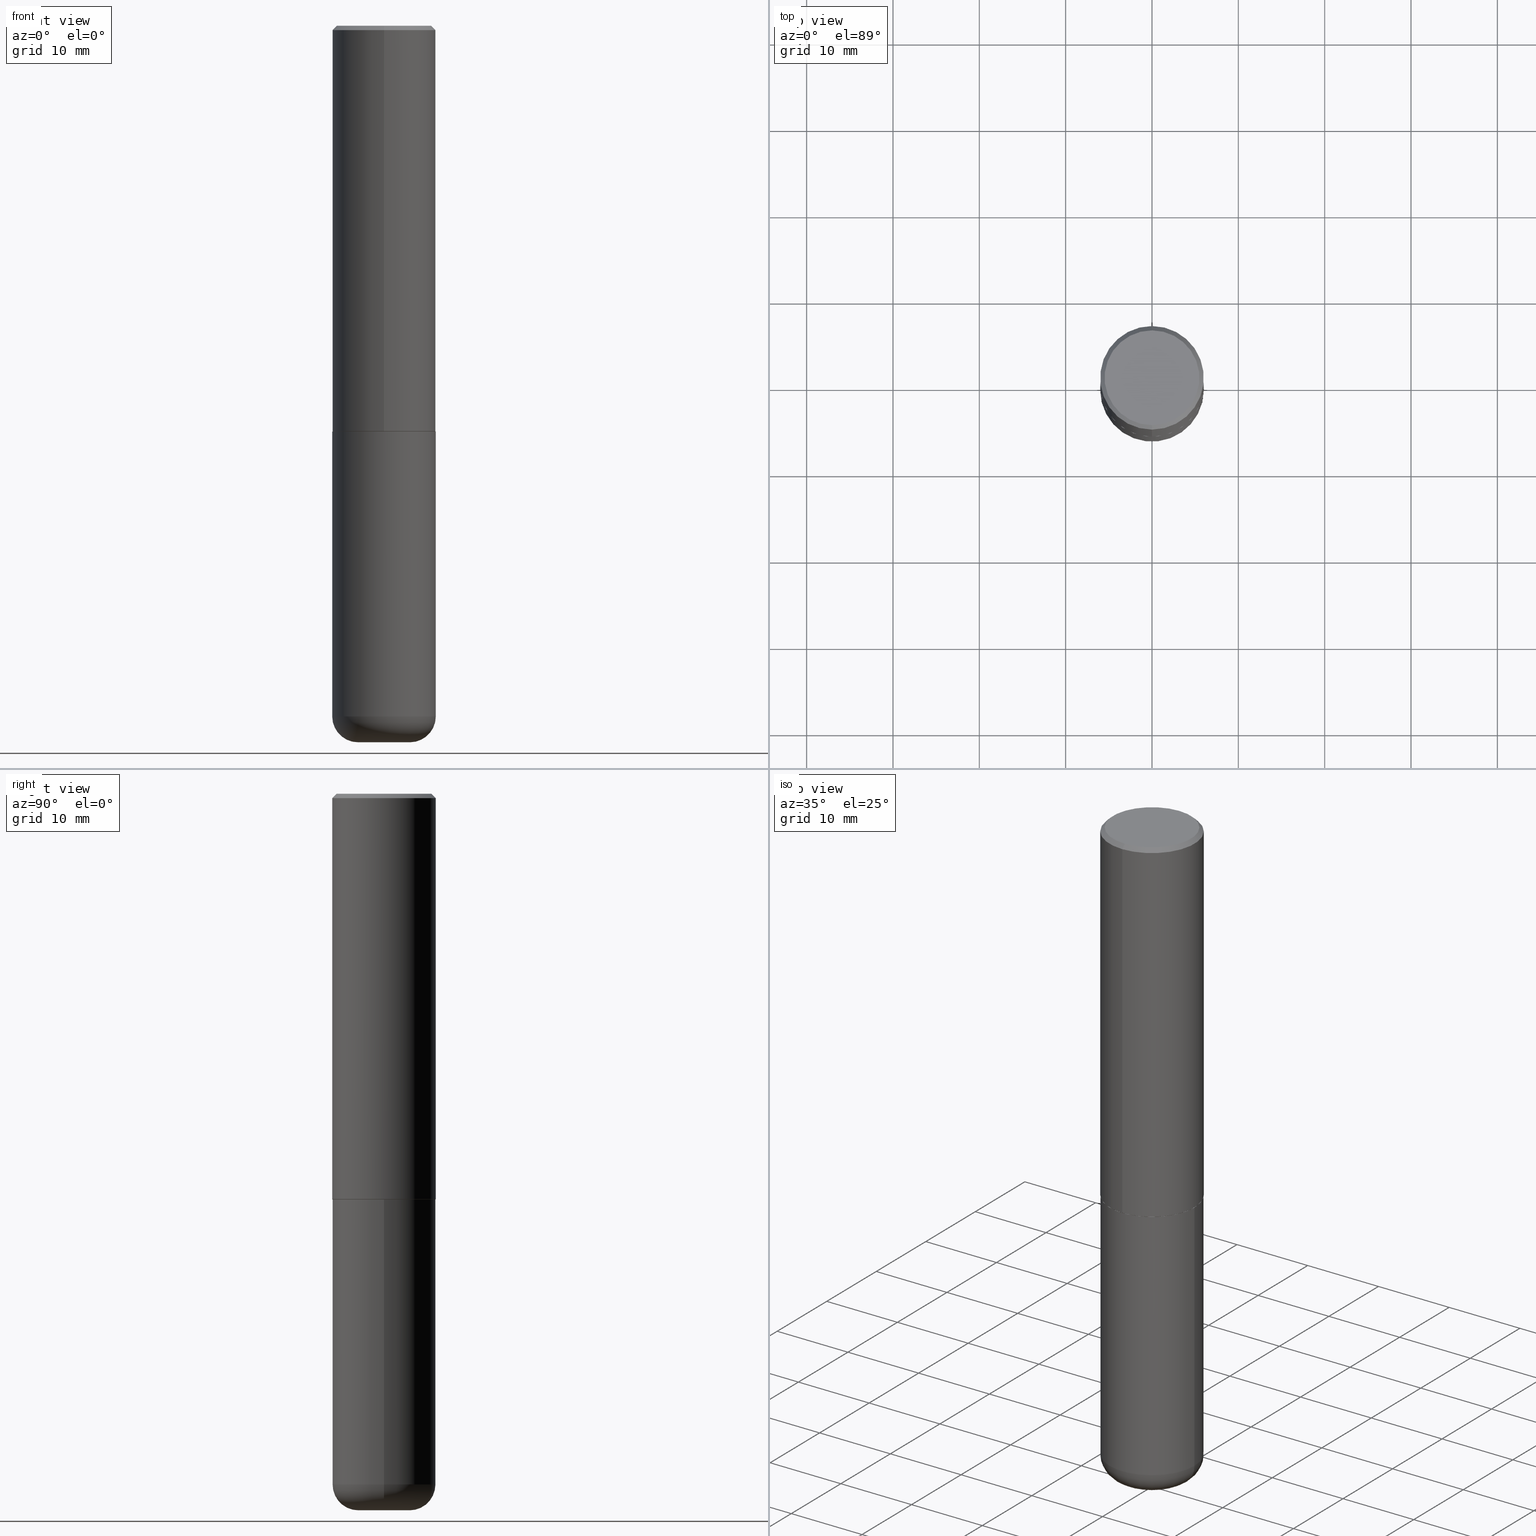
[diagram: canonical four-view strip — front | top / right | iso, engineering-drawing reading convention]
A machine part, canonical four-view strip (front | top / right | iso — engineering-drawing reading convention). The complete STEP part file that produces these views, byte-faithful:
ISO-10303-21;
HEADER;
FILE_DESCRIPTION (( 'STEP AP203' ),
    '1' );
FILE_NAME ('47556.STEP',
    '2024-03-06T10:59:35',
    ( '' ),
    ( '' ),
    'SwSTEP 2.0',
    'SolidWorks 2023',
    '' );
FILE_SCHEMA (( 'CONFIG_CONTROL_DESIGN' ));
ENDSEC;

DATA;
#1 = DIRECTION ( 'NONE',  ( 7.105427357601001859E-15, 1.000000000000000000, -3.491481338843145583E-15 ) ) ;
#2 = ORIENTED_EDGE ( 'NONE', *, *, #53, .T. ) ;
#3 = DIRECTION ( 'NONE',  ( -2.445468806185136597E-29, 3.491481338843145583E-15, 1.000000000000000000 ) ) ;
#4 = VERTEX_POINT ( 'NONE', #107 ) ;
#5 = DIRECTION ( 'NONE',  ( 1.000000000000000000, -6.982962677686264344E-15, 0.000000000000000000 ) ) ;
#6 = APPROVAL_PERSON_ORGANIZATION ( #184, #237, #381 ) ;
#7 = DIRECTION ( 'NONE',  ( -2.445371925614294233E-29, 3.491620077334691546E-15, 1.000000000000000000 ) ) ;
#8 = AXIS2_PLACEMENT_3D ( 'NONE', #108, #364, #164 ) ;
#9 =( NAMED_UNIT ( * ) PLANE_ANGLE_UNIT ( ) SI_UNIT ( $, .RADIAN. ) );
#10 = EDGE_CURVE ( 'NONE', #61, #193, #118, .T. ) ;
#11 = FACE_OUTER_BOUND ( 'NONE', #294, .T. ) ;
#12 = DIRECTION ( 'NONE',  ( -2.445371925614294233E-29, 3.491620077334691546E-15, 1.000000000000000000 ) ) ;
#13 = LOCAL_TIME ( 5, 59, 35.00000000000000000, #122 ) ;
#14 = AXIS2_PLACEMENT_3D ( 'NONE', #336, #371, #275 ) ;
#15 = DIRECTION ( 'NONE',  ( -2.445371925614294233E-29, 3.491620077334691546E-15, 1.000000000000000000 ) ) ;
#16 = CARTESIAN_POINT ( 'NONE',  ( 4.890743851228601113E-31, -6.983240154669400497E-17, -0.02000000000000005246 ) ) ;
#17 = CIRCLE ( 'NONE', #313, 0.1180999999999997607 ) ;
#18 = CARTESIAN_POINT ( 'NONE',  ( 1.671196514507800548E-15, 0.2351999999999935531, -1.850400000000001377 ) ) ;
#19 = CIRCLE ( 'NONE', #374, 0.2361999999999999933 ) ;
#20 = EDGE_LOOP ( 'NONE', ( #152, #415, #290, #102 ) ) ;
#21 = EDGE_CURVE ( 'NONE', #197, #265, #217, .T. ) ;
#22 = CIRCLE ( 'NONE', #298, 0.1181000000000000105 ) ;
#23 = PERSON_AND_ORGANIZATION ( #392, #185 ) ;
#24 = APPROVAL_STATUS ( 'not_yet_approved' ) ;
#25 = EDGE_LOOP ( 'NONE', ( #353, #67, #416, #129 ) ) ;
#26 = ORIENTED_EDGE ( 'NONE', *, *, #307, .F. ) ;
#27 = COORDINATED_UNIVERSAL_TIME_OFFSET ( 5, 0, .BEHIND. ) ;
#28 = DIRECTION ( 'NONE',  ( 5.024295867787719235E-15, 0.7071067811865017205, 0.7071067811865933139 ) ) ;
#29 = VERTEX_POINT ( 'NONE', #268 ) ;
#30 = AXIS2_PLACEMENT_3D ( 'NONE', #70, #100, #198 ) ;
#31 = DATE_AND_TIME ( #65, #340 ) ;
#32 = ADVANCED_FACE ( 'NONE', ( #271 ), #373, .T. ) ;
#33 = DIRECTION ( 'NONE',  ( -2.445371925614294233E-29, 3.491620077334691546E-15, 1.000000000000000000 ) ) ;
#34 = ORIENTED_EDGE ( 'NONE', *, *, #71, .T. ) ;
#35 = DIRECTION ( 'NONE',  ( -6.982962677686265922E-15, -1.000000000000000000, 3.487819265831411744E-15 ) ) ;
#36 = DIRECTION ( 'NONE',  ( -2.445468806185136597E-29, 3.491481338843145583E-15, 1.000000000000000000 ) ) ;
#37 = VERTEX_POINT ( 'NONE', #278 ) ;
#38 = ADVANCED_FACE ( 'NONE', ( #337 ), #110, .F. ) ;
#39 = AXIS2_PLACEMENT_3D ( 'NONE', #370, #402, #330 ) ;
#40 = AXIS2_PLACEMENT_3D ( 'NONE', #221, #33, #346 ) ;
#41 = CARTESIAN_POINT ( 'NONE',  ( 0.000000000000000000, 0.000000000000000000, 0.000000000000000000 ) ) ;
#42 = CC_DESIGN_DATE_AND_TIME_ASSIGNMENT ( #62, #380, ( #358 ) ) ;
#43 = DIRECTION ( 'NONE',  ( -6.982962677686265133E-15, -1.000000000000000000, 3.484499991918703113E-15 ) ) ;
#44 = CARTESIAN_POINT ( 'NONE',  ( 1.674749228186601644E-15, 0.2351999999999935531, -1.850400000000001377 ) ) ;
#45 = CIRCLE ( 'NONE', #267, 0.1181000000000000105 ) ;
#46 = AXIS2_PLACEMENT_3D ( 'NONE', #50, #236, #366 ) ;
#47 = CARTESIAN_POINT ( 'NONE',  ( 7.702248551960706711E-29, -1.099676962482037231E-14, -3.149600000000000399 ) ) ;
#48 = DIRECTION ( 'NONE',  ( -2.445468806185136877E-29, 3.491481338843145188E-15, 1.000000000000000000 ) ) ;
#49 = CARTESIAN_POINT ( 'NONE',  ( -0.2361999999999998823, -9.318467682955017493E-15, -3.149600000000000399 ) ) ;
#50 = CARTESIAN_POINT ( 'NONE',  ( 4.524916211156691287E-29, -6.460893791100115503E-15, -1.850400000000000489 ) ) ;
#51 = CYLINDRICAL_SURFACE ( 'NONE', #39, 0.2362000000000001043 ) ;
#52 = CONICAL_SURFACE ( 'NONE', #239, 0.2351999999999999924, 0.7853981633973801113 ) ;
#53 = EDGE_CURVE ( 'NONE', #4, #57, #333, .T. ) ;
#54 = COORDINATED_UNIVERSAL_TIME_OFFSET ( 5, 0, .BEHIND. ) ;
#55 = ADVANCED_FACE ( 'NONE', ( #276 ), #350, .T. ) ;
#56 = LINE ( 'NONE', #18, #331 ) ;
#57 = VERTEX_POINT ( 'NONE', #49 ) ;
#58 = DIRECTION ( 'NONE',  ( -4.851104656540961908E-15, -0.7071067811865496822, -0.7071067811865453523 ) ) ;
#59 = CC_DESIGN_APPROVAL ( #237, ( #358 ) ) ;
#60 = EDGE_LOOP ( 'NONE', ( #230, #293, #387, #64 ) ) ;
#61 = VERTEX_POINT ( 'NONE', #84 ) ;
#62 = DATE_AND_TIME ( #194, #135 ) ;
#63 = CARTESIAN_POINT ( 'NONE',  ( 4.890743851228601113E-31, -6.983240154669400497E-17, -0.02000000000000005246 ) ) ;
#64 = ORIENTED_EDGE ( 'NONE', *, *, #202, .F. ) ;
#65 = CALENDAR_DATE ( 2024, 6, 3 ) ;
#66 = MECHANICAL_CONTEXT ( 'NONE', #204, 'mechanical' ) ;
#67 = ORIENTED_EDGE ( 'NONE', *, *, #167, .F. ) ;
#68 = VECTOR ( 'NONE', #361, 39.37007874015748143 ) ;
#69 = PRODUCT ( '47556', '47556', '', ( #66 ) ) ;
#70 = CARTESIAN_POINT ( 'NONE',  ( 4.890743851228601113E-31, -6.983240154669400497E-17, -0.02000000000000005246 ) ) ;
#71 = EDGE_CURVE ( 'NONE', #345, #37, #22, .T. ) ;
#72 = SHAPE_DEFINITION_REPRESENTATION ( #226, #136 ) ;
#73 = CYLINDRICAL_SURFACE ( 'NONE', #303, 0.2362000000000001043 ) ;
#74 = ORIENTED_EDGE ( 'NONE', *, *, #178, .F. ) ;
#75 = CC_DESIGN_PERSON_AND_ORGANIZATION_ASSIGNMENT ( #182, #289, ( #358 ) ) ;
#76 = CC_DESIGN_APPROVAL ( #207, ( #324 ) ) ;
#77 = DIRECTION ( 'NONE',  ( -2.445371925614294233E-29, 3.491620077334691546E-15, 1.000000000000000000 ) ) ;
#78 = DIRECTION ( 'NONE',  ( 2.438088387897960049E-29, -3.491481338843145188E-15, -1.000000000000000000 ) ) ;
#79 = CLOSED_SHELL ( 'NONE', ( #173, #231, #87, #263, #335, #32 ) ) ;
#80 = AXIS2_PLACEMENT_3D ( 'NONE', #338, #114, #81 ) ;
#81 = DIRECTION ( 'NONE',  ( -6.982962677686265133E-15, -1.000000000000000000, 3.469747663417773847E-15 ) ) ;
#82 = DIRECTION ( 'NONE',  ( -2.445468806185136597E-29, 3.491481338843145583E-15, 1.000000000000000000 ) ) ;
#83 = DIRECTION ( 'NONE',  ( 1.000000000000000000, -6.982962677686269077E-15, 0.000000000000000000 ) ) ;
#84 = CARTESIAN_POINT ( 'NONE',  ( -1.620449627073635079E-15, -0.2362000000000000766, -0.01999999999999922673 ) ) ;
#85 = PRODUCT_RELATED_PRODUCT_CATEGORY ( 'detail', '', ( #69 ) ) ;
#86 = LINE ( 'NONE', #206, #218 ) ;
#87 = ADVANCED_FACE ( 'NONE', ( #369 ), #339, .F. ) ;
#88 = PERSON_AND_ORGANIZATION ( #392, #185 ) ;
#89 = FACE_OUTER_BOUND ( 'NONE', #261, .T. ) ;
#90 = MANIFOLD_SOLID_BREP ( 'Body-Move/Copy2[1]', #79 ) ;
#91 = DATE_TIME_ROLE ( 'classification_date' ) ;
#92 = LINE ( 'NONE', #216, #201 ) ;
#93 = ORIENTED_EDGE ( 'NONE', *, *, #10, .T. ) ;
#94 = CIRCLE ( 'NONE', #273, 0.1180999999999997607 ) ;
#95 = EDGE_LOOP ( 'NONE', ( #287, #394, #288, #121 ) ) ;
#96 = EDGE_LOOP ( 'NONE', ( #355, #220, #316, #390 ) ) ;
#97 = CARTESIAN_POINT ( 'NONE',  ( 4.522470839231075964E-29, -6.457402171022779437E-15, -1.849400000000000155 ) ) ;
#98 = ORIENTED_EDGE ( 'NONE', *, *, #53, .F. ) ;
#99 = APPROVAL ( #212, 'UNSPECIFIED' ) ;
#100 = DIRECTION ( 'NONE',  ( -2.445371925614294233E-29, 3.491620077334691546E-15, 1.000000000000000000 ) ) ;
#101 = AXIS2_PLACEMENT_3D ( 'NONE', #63, #120, #284 ) ;
#102 = ORIENTED_EDGE ( 'NONE', *, *, #408, .F. ) ;
#103 = TOROIDAL_SURFACE ( 'NONE', #348, 0.1180999999999999966, 0.1180999999999997607 ) ;
#104 = AXIS2_PLACEMENT_3D ( 'NONE', #168, #106, #301 ) ;
#105 = EDGE_CURVE ( 'NONE', #37, #57, #94, .T. ) ;
#106 = DIRECTION ( 'NONE',  ( -2.445371925614294233E-29, 3.491620077334691546E-15, 1.000000000000000000 ) ) ;
#107 = CARTESIAN_POINT ( 'NONE',  ( 0.2361999999999998823, -1.264614540928986883E-14, -3.149600000000000399 ) ) ;
#108 = CARTESIAN_POINT ( 'NONE',  ( 0.000000000000000000, 0.000000000000000000, 0.000000000000000000 ) ) ;
#109 = EDGE_CURVE ( 'NONE', #29, #223, #183, .T. ) ;
#110 = PLANE ( 'NONE',  #46 ) ;
#111 =( LENGTH_UNIT ( ) NAMED_UNIT ( * ) SI_UNIT ( $, .METRE. ) );
#112 = APPROVAL_PERSON_ORGANIZATION ( #23, #99, #342 ) ;
#113 = ADVANCED_FACE ( 'NONE', ( #311 ), #132, .T. ) ;
#114 = DIRECTION ( 'NONE',  ( -2.445371925614294233E-29, 3.491620077334691546E-15, 1.000000000000000000 ) ) ;
#115 = DIRECTION ( 'NONE',  ( 6.982962677686265922E-15, 1.000000000000000000, -3.487819265831411744E-15 ) ) ;
#116 = CARTESIAN_POINT ( 'NONE',  ( 1.678301941865357183E-15, 0.2362000000000001043, -8.247206622664545710E-16 ) ) ;
#117 = LINE ( 'NONE', #376, #139 ) ;
#118 = CIRCLE ( 'NONE', #225, 0.2361999999999999933 ) ;
#119 = DATE_AND_TIME ( #191, #13 ) ;
#120 = DIRECTION ( 'NONE',  ( 2.445371925614294233E-29, -3.491620077334691546E-15, -1.000000000000000000 ) ) ;
#121 = ORIENTED_EDGE ( 'NONE', *, *, #295, .F. ) ;
#122 = COORDINATED_UNIVERSAL_TIME_OFFSET ( 5, 0, .BEHIND. ) ;
#123 = CARTESIAN_POINT ( 'NONE',  ( 1.509716530915768154E-15, 0.2161999999999996425, -5.905355322199570835E-16 ) ) ;
#124 = VERTEX_POINT ( 'NONE', #192 ) ;
#125 = EDGE_CURVE ( 'NONE', #197, #418, #56, .T. ) ;
#126 = EDGE_LOOP ( 'NONE', ( #34, #187, #98, #409 ) ) ;
#127 = EDGE_LOOP ( 'NONE', ( #329, #181, #163, #26 ) ) ;
#128 = DIRECTION ( 'NONE',  ( 1.000000000000000000, -6.982962677686270655E-15, 0.000000000000000000 ) ) ;
#129 = ORIENTED_EDGE ( 'NONE', *, *, #243, .T. ) ;
#130 = VERTEX_POINT ( 'NONE', #344 ) ;
#131 = ORIENTED_EDGE ( 'NONE', *, *, #21, .F. ) ;
#132 = CONICAL_SURFACE ( 'NONE', #101, 0.2361999999999999933, 0.7853981633974479459 ) ;
#133 = CARTESIAN_POINT ( 'NONE',  ( -1.642392821791764560E-15, -0.2352000000000064595, -1.850399999999999823 ) ) ;
#134 = CYLINDRICAL_SURFACE ( 'NONE', #8, 0.2361999999999999933 ) ;
#135 = LOCAL_TIME ( 5, 59, 35.00000000000000000, #27 ) ;
#136 = ADVANCED_BREP_SHAPE_REPRESENTATION ( '47556', ( #90, #360, #321 ), #362 ) ;
#137 = CARTESIAN_POINT ( 'NONE',  ( -1.642392821791764560E-15, -0.2352000000000064595, -1.850399999999999823 ) ) ;
#138 = CC_DESIGN_PERSON_AND_ORGANIZATION_ASSIGNMENT ( #377, #158, ( #296 ) ) ;
#139 = VECTOR ( 'NONE', #213, 39.37007874015748143 ) ;
#140 = CALENDAR_DATE ( 2024, 6, 3 ) ;
#141 = AXIS2_PLACEMENT_3D ( 'NONE', #97, #156, #180 ) ;
#142 = AXIS2_PLACEMENT_3D ( 'NONE', #400, #174, #302 ) ;
#143 = AXIS2_PLACEMENT_3D ( 'NONE', #16, #406, #115 ) ;
#144 = CC_DESIGN_DATE_AND_TIME_ASSIGNMENT ( #119, #91, ( #324 ) ) ;
#145 = ORIENTED_EDGE ( 'NONE', *, *, #71, .F. ) ;
#146 = APPROVAL_DATE_TIME ( #31, #99 ) ;
#147 = DIRECTION ( 'NONE',  ( -2.445371925614294233E-29, 3.491620077334691546E-15, 1.000000000000000000 ) ) ;
#148 = EDGE_CURVE ( 'NONE', #124, #418, #314, .T. ) ;
#149 = CARTESIAN_POINT ( 'NONE',  ( 0.000000000000000000, 0.000000000000000000, 0.000000000000000000 ) ) ;
#150 = ORIENTED_EDGE ( 'NONE', *, *, #179, .T. ) ;
#151 = APPROVAL_DATE_TIME ( #244, #207 ) ;
#152 = ORIENTED_EDGE ( 'NONE', *, *, #343, .F. ) ;
#153 = APPROVAL_STATUS ( 'not_yet_approved' ) ;
#154 = EDGE_CURVE ( 'NONE', #345, #4, #17, .T. ) ;
#155 = AXIS2_PLACEMENT_3D ( 'NONE', #322, #147, #257 ) ;
#156 = DIRECTION ( 'NONE',  ( -2.445371925614294233E-29, 3.491620077334691546E-15, 1.000000000000000000 ) ) ;
#157 = EDGE_LOOP ( 'NONE', ( #351, #312 ) ) ;
#158 = PERSON_AND_ORGANIZATION_ROLE ( 'design_supplier' ) ;
#159 = CARTESIAN_POINT ( 'NONE',  ( 0.000000000000000000, 0.000000000000000000, 0.000000000000000000 ) ) ;
#160 = ORIENTED_EDGE ( 'NONE', *, *, #363, .F. ) ;
#161 = EDGE_LOOP ( 'NONE', ( #145, #317 ) ) ;
#162 = CARTESIAN_POINT ( 'NONE',  ( 7.702248551960706711E-29, -1.099676962482037231E-14, -3.149600000000000399 ) ) ;
#163 = ORIENTED_EDGE ( 'NONE', *, *, #148, .F. ) ;
#164 = DIRECTION ( 'NONE',  ( 1.000000000000000000, -6.982962677686266711E-15, 4.876176775795936353E-29 ) ) ;
#165 = TOROIDAL_SURFACE ( 'NONE', #224, 0.1180999999999999966, 0.1180999999999997607 ) ;
#166 = CARTESIAN_POINT ( 'NONE',  ( -0.2361999999999999933, -7.050401405242508548E-15, -1.850400000000000267 ) ) ;
#167 = EDGE_CURVE ( 'NONE', #223, #29, #356, .T. ) ;
#168 = CARTESIAN_POINT ( 'NONE',  ( 4.524916211156691287E-29, -6.460893791100115503E-15, -1.850400000000000489 ) ) ;
#169 = CC_DESIGN_PERSON_AND_ORGANIZATION_ASSIGNMENT ( #88, #378, ( #69 ) ) ;
#170 = VECTOR ( 'NONE', #372, 39.37007874015748143 ) ;
#171 = CARTESIAN_POINT ( 'NONE',  ( 4.525095478964977394E-29, -6.460637069395357576E-15, -1.850400000000000267 ) ) ;
#172 = DIRECTION ( 'NONE',  ( -2.445468806185136597E-29, 3.491481338843145583E-15, 1.000000000000000000 ) ) ;
#173 = ADVANCED_FACE ( 'NONE', ( #89 ), #354, .T. ) ;
#174 = DIRECTION ( 'NONE',  ( -2.445371925614294233E-29, 3.491620077334691546E-15, 1.000000000000000000 ) ) ;
#175 = LOCAL_TIME ( 5, 59, 35.00000000000000000, #269 ) ;
#176 =( CONVERSION_BASED_UNIT ( 'INCH', #405 ) LENGTH_UNIT ( ) NAMED_UNIT ( #326 ) );
#177 = CARTESIAN_POINT ( 'NONE',  ( 4.525095478964977394E-29, -6.460637069395357576E-15, -1.850400000000000267 ) ) ;
#178 = EDGE_CURVE ( 'NONE', #4, #130, #117, .T. ) ;
#179 = EDGE_CURVE ( 'NONE', #29, #61, #92, .T. ) ;
#180 = DIRECTION ( 'NONE',  ( -6.982962677686265133E-15, -1.000000000000000000, 3.469747663417773847E-15 ) ) ;
#181 = ORIENTED_EDGE ( 'NONE', *, *, #125, .T. ) ;
#182 = PERSON_AND_ORGANIZATION ( #392, #185 ) ;
#183 = CIRCLE ( 'NONE', #40, 0.2161999999999996425 ) ;
#184 = PERSON_AND_ORGANIZATION ( #392, #185 ) ;
#185 = ORGANIZATION ( 'UNSPECIFIED', 'UNSPECIFIED', '' ) ;
#186 = FACE_OUTER_BOUND ( 'NONE', #391, .T. ) ;
#187 = ORIENTED_EDGE ( 'NONE', *, *, #105, .T. ) ;
#188 = ADVANCED_FACE ( 'NONE', ( #186 ), #315, .F. ) ;
#189 = DIRECTION ( 'NONE',  ( -1.000000000000000000, 6.982962677686265922E-15, -4.876176775795935793E-29 ) ) ;
#190 = ORIENTED_EDGE ( 'NONE', *, *, #274, .F. ) ;
#191 = CALENDAR_DATE ( 2024, 6, 3 ) ;
#192 = CARTESIAN_POINT ( 'NONE',  ( -1.649375784469452349E-15, -0.2362000000000066546, -1.849399999999999489 ) ) ;
#193 = VERTEX_POINT ( 'NONE', #325 ) ;
#194 = CALENDAR_DATE ( 2024, 6, 3 ) ;
#195 = CIRCLE ( 'NONE', #80, 0.2362000000000002153 ) ;
#196 = CARTESIAN_POINT ( 'NONE',  ( 0.1180999999999999966, -1.182145751705512057E-14, -3.149600000000000399 ) ) ;
#197 = VERTEX_POINT ( 'NONE', #44 ) ;
#198 = DIRECTION ( 'NONE',  ( -6.982962677686265922E-15, -1.000000000000000000, 3.487819265831411744E-15 ) ) ;
#199 = LINE ( 'NONE', #264, #68 ) ;
#200 = LOCAL_TIME ( 5, 59, 35.00000000000000000, #349 ) ;
#201 = VECTOR ( 'NONE', #58, 39.37007874015748143 ) ;
#202 = EDGE_CURVE ( 'NONE', #57, #4, #411, .T. ) ;
#203 = DIRECTION ( 'NONE',  ( -2.445371925614294233E-29, 3.491620077334691546E-15, 1.000000000000000000 ) ) ;
#204 = APPLICATION_CONTEXT ( 'configuration controlled 3d designs of mechanical parts and assemblies' ) ;
#205 = VECTOR ( 'NONE', #77, 39.37007874015748143 ) ;
#206 = CARTESIAN_POINT ( 'NONE',  ( -1.649375784469496722E-15, -0.2362000000000001043, 8.247206622664545710E-16 ) ) ;
#207 = APPROVAL ( #153, 'UNSPECIFIED' ) ;
#208 = CARTESIAN_POINT ( 'NONE',  ( 1.678301941865380454E-15, 0.2361999999999937760, -1.849400000000001043 ) ) ;
#209 = CALENDAR_DATE ( 2024, 6, 3 ) ;
#210 = DIRECTION ( 'NONE',  ( -2.445468806185136597E-29, 3.491481338843145583E-15, 1.000000000000000000 ) ) ;
#211 = AXIS2_PLACEMENT_3D ( 'NONE', #123, #251, #262 ) ;
#212 = APPROVAL_STATUS ( 'not_yet_approved' ) ;
#213 = DIRECTION ( 'NONE',  ( -2.445468806185136877E-29, 3.491481338843145188E-15, 1.000000000000000000 ) ) ;
#214 = DATE_AND_TIME ( #140, #200 ) ;
#215 = DIRECTION ( 'NONE',  ( 0.000000000000000000, 0.000000000000000000, 1.000000000000000000 ) ) ;
#216 = CARTESIAN_POINT ( 'NONE',  ( -1.620449627073635079E-15, -0.2362000000000000766, -0.01999999999999922673 ) ) ;
#217 = CIRCLE ( 'NONE', #104, 0.2351999999999999924 ) ;
#218 = VECTOR ( 'NONE', #15, 39.37007874015748143 ) ;
#219 = AXIS2_PLACEMENT_3D ( 'NONE', #177, #222, #189 ) ;
#220 = ORIENTED_EDGE ( 'NONE', *, *, #363, .T. ) ;
#221 = CARTESIAN_POINT ( 'NONE',  ( -8.038070963430480451E-45, 1.147714573189292330E-30, 3.287054569996039822E-16 ) ) ;
#222 = DIRECTION ( 'NONE',  ( 2.438088387897960049E-29, -3.491481338843145188E-15, -1.000000000000000000 ) ) ;
#223 = VERTEX_POINT ( 'NONE', #389 ) ;
#224 = AXIS2_PLACEMENT_3D ( 'NONE', #229, #3, #327 ) ;
#225 = AXIS2_PLACEMENT_3D ( 'NONE', #399, #7, #35 ) ;
#226 = PRODUCT_DEFINITION_SHAPE ( 'NONE', 'NONE',  #358 ) ;
#227 = ADVANCED_FACE ( 'NONE', ( #395 ), #232, .T. ) ;
#228 = DIRECTION ( 'NONE',  ( -2.445371925614294233E-29, 3.491620077334691546E-15, 1.000000000000000000 ) ) ;
#229 = CARTESIAN_POINT ( 'NONE',  ( 7.702248551960706711E-29, -1.099676962482037231E-14, -3.149600000000000399 ) ) ;
#230 = ORIENTED_EDGE ( 'NONE', *, *, #105, .F. ) ;
#231 = ADVANCED_FACE ( 'NONE', ( #292 ), #165, .T. ) ;
#232 = CONICAL_SURFACE ( 'NONE', #308, 0.2351999999999999924, 0.7853981633973801113 ) ;
#233 = CARTESIAN_POINT ( 'NONE',  ( 4.524916211156691287E-29, -6.460893791100115503E-15, -1.850400000000000489 ) ) ;
#234 = ADVANCED_FACE ( 'NONE', ( #299 ), #52, .T. ) ;
#235 = FACE_OUTER_BOUND ( 'NONE', #60, .T. ) ;
#236 = DIRECTION ( 'NONE',  ( -2.445371925614293953E-29, 3.491620077334691546E-15, 1.000000000000000000 ) ) ;
#237 = APPROVAL ( #24, 'UNSPECIFIED' ) ;
#238 = DIRECTION ( 'NONE',  ( 1.000000000000000000, -6.982962677686272233E-15, 0.000000000000000000 ) ) ;
#239 = AXIS2_PLACEMENT_3D ( 'NONE', #233, #203, #359 ) ;
#240 = AXIS2_PLACEMENT_3D ( 'NONE', #334, #78, #242 ) ;
#241 = LINE ( 'NONE', #116, #205 ) ;
#242 = DIRECTION ( 'NONE',  ( -1.000000000000000000, 6.982962677686265922E-15, -4.876176775795935793E-29 ) ) ;
#243 = EDGE_CURVE ( 'NONE', #193, #61, #245, .T. ) ;
#244 = DATE_AND_TIME ( #209, #175 ) ;
#245 = CIRCLE ( 'NONE', #30, 0.2361999999999999933 ) ;
#246 = APPLICATION_PROTOCOL_DEFINITION ( 'international standard', 'config_control_design', 1994, #204 ) ;
#247 = EDGE_LOOP ( 'NONE', ( #285, #150, #93, #190 ) ) ;
#248 = DIRECTION ( 'NONE',  ( 1.000000000000000000, -6.982962677686266711E-15, 4.876176775795936353E-29 ) ) ;
#249 = VERTEX_POINT ( 'NONE', #166 ) ;
#250 = APPROVAL_ROLE ( '' ) ;
#251 = DIRECTION ( 'NONE',  ( 2.445371925614293953E-29, -3.491620077334691546E-15, -1.000000000000000000 ) ) ;
#252 = ORIENTED_EDGE ( 'NONE', *, *, #382, .F. ) ;
#253 = APPROVAL_PERSON_ORGANIZATION ( #318, #207, #250 ) ;
#254 = APPLICATION_PROTOCOL_DEFINITION ( 'international standard', 'config_control_design', 1994, #255 ) ;
#255 = APPLICATION_CONTEXT ( 'configuration controlled 3d designs of mechanical parts and assemblies' ) ;
#256 = DESIGN_CONTEXT ( 'detailed design', #255, 'design' ) ;
#257 = DIRECTION ( 'NONE',  ( -6.982962677686265922E-15, -1.000000000000000000, 3.491620077334691152E-15 ) ) ;
#258 = ORIENTED_EDGE ( 'NONE', *, *, #109, .T. ) ;
#259 = ORIENTED_EDGE ( 'NONE', *, *, #243, .F. ) ;
#260 = EDGE_CURVE ( 'NONE', #37, #345, #45, .T. ) ;
#261 = EDGE_LOOP ( 'NONE', ( #2, #282, #252, #74 ) ) ;
#262 = DIRECTION ( 'NONE',  ( 6.982962677686265922E-15, 1.000000000000000000, -3.491620077334691546E-15 ) ) ;
#263 = ADVANCED_FACE ( 'NONE', ( #300 ), #134, .T. ) ;
#264 = CARTESIAN_POINT ( 'NONE',  ( 1.649375784469496525E-15, 0.2361999999999999378, -0.02000000000000087472 ) ) ;
#265 = VERTEX_POINT ( 'NONE', #133 ) ;
#266 = UNCERTAINTY_MEASURE_WITH_UNIT (LENGTH_MEASURE( 1.000000000000000082E-05 ), #176, 'distance_accuracy_value', 'NONE');
#267 = AXIS2_PLACEMENT_3D ( 'NONE', #323, #36, #397 ) ;
#268 = CARTESIAN_POINT ( 'NONE',  ( -1.551844647095918761E-15, -0.2161999999999996425, 1.083593717719362934E-15 ) ) ;
#269 = COORDINATED_UNIVERSAL_TIME_OFFSET ( 5, 0, .BEHIND. ) ;
#270 = CARTESIAN_POINT ( 'NONE',  ( -0.2361999999999999933, 1.678301941865356591E-15, -1.161852468318208757E-29 ) ) ;
#271 = FACE_OUTER_BOUND ( 'NONE', #161, .T. ) ;
#272 = CIRCLE ( 'NONE', #14, 0.2361999999999999933 ) ;
#273 = AXIS2_PLACEMENT_3D ( 'NONE', #286, #1, #385 ) ;
#274 = EDGE_CURVE ( 'NONE', #223, #193, #199, .T. ) ;
#275 = DIRECTION ( 'NONE',  ( 1.000000000000000000, -6.982962677686269077E-15, 0.000000000000000000 ) ) ;
#276 = FACE_OUTER_BOUND ( 'NONE', #25, .T. ) ;
#277 = LINE ( 'NONE', #137, #170 ) ;
#278 = CARTESIAN_POINT ( 'NONE',  ( -0.1181000000000000383, -9.944215141480041685E-15, -3.267699999999999605 ) ) ;
#279 = ADVANCED_FACE ( 'NONE', ( #393 ), #73, .T. ) ;
#280 = AXIS2_PLACEMENT_3D ( 'NONE', #159, #410, #248 ) ;
#281 = PERSON_AND_ORGANIZATION ( #392, #185 ) ;
#282 = ORIENTED_EDGE ( 'NONE', *, *, #343, .T. ) ;
#283 = CC_DESIGN_PERSON_AND_ORGANIZATION_ASSIGNMENT ( #281, #412, ( #324 ) ) ;
#284 = DIRECTION ( 'NONE',  ( 6.982962677686265922E-15, 1.000000000000000000, -3.487819265831411744E-15 ) ) ;
#285 = ORIENTED_EDGE ( 'NONE', *, *, #109, .F. ) ;
#286 = CARTESIAN_POINT ( 'NONE',  ( -0.1180999999999999966, -1.015761865388769332E-14, -3.149600000000000399 ) ) ;
#287 = ORIENTED_EDGE ( 'NONE', *, *, #125, .F. ) ;
#288 = ORIENTED_EDGE ( 'NONE', *, *, #307, .T. ) ;
#289 = PERSON_AND_ORGANIZATION_ROLE ( 'creator' ) ;
#290 = ORIENTED_EDGE ( 'NONE', *, *, #178, .T. ) ;
#291 = DIRECTION ( 'NONE',  ( 1.000000000000000000, 0.000000000000000000, 0.000000000000000000 ) ) ;
#292 = FACE_OUTER_BOUND ( 'NONE', #126, .T. ) ;
#293 = ORIENTED_EDGE ( 'NONE', *, *, #260, .T. ) ;
#294 = EDGE_LOOP ( 'NONE', ( #160, #347, #388, #259 ) ) ;
#295 = EDGE_CURVE ( 'NONE', #418, #124, #195, .T. ) ;
#296 = PRODUCT_DEFINITION_FORMATION_WITH_SPECIFIED_SOURCE ( 'ANY', '', #69, .NOT_KNOWN. ) ;
#297 = CARTESIAN_POINT ( 'NONE',  ( 4.524916211156691287E-29, -6.460893791100115503E-15, -1.850400000000000489 ) ) ;
#298 = AXIS2_PLACEMENT_3D ( 'NONE', #401, #210, #238 ) ;
#299 = FACE_OUTER_BOUND ( 'NONE', #127, .T. ) ;
#300 = FACE_OUTER_BOUND ( 'NONE', #20, .T. ) ;
#301 = DIRECTION ( 'NONE',  ( -6.982962677686265133E-15, -1.000000000000000000, 3.484499991918703113E-15 ) ) ;
#302 = DIRECTION ( 'NONE',  ( -6.982962677686265133E-15, -1.000000000000000000, 3.484499991918703113E-15 ) ) ;
#303 = AXIS2_PLACEMENT_3D ( 'NONE', #41, #12, #306 ) ;
#304 = DIRECTION ( 'NONE',  ( -2.445468806185136597E-29, 3.491481338843145583E-15, 1.000000000000000000 ) ) ;
#305 = DIRECTION ( 'NONE',  ( 1.000000000000000000, -6.982962677686264344E-15, 0.000000000000000000 ) ) ;
#306 = DIRECTION ( 'NONE',  ( -6.982962677686265922E-15, -1.000000000000000000, 3.491620077334691941E-15 ) ) ;
#307 = EDGE_CURVE ( 'NONE', #265, #124, #277, .T. ) ;
#308 = AXIS2_PLACEMENT_3D ( 'NONE', #297, #228, #43 ) ;
#309 = CARTESIAN_POINT ( 'NONE',  ( 7.702248551960706711E-29, -1.099676962482037231E-14, -3.149600000000000399 ) ) ;
#310 = SECURITY_CLASSIFICATION_LEVEL ( 'unclassified' ) ;
#311 = FACE_OUTER_BOUND ( 'NONE', #247, .T. ) ;
#312 = ORIENTED_EDGE ( 'NONE', *, *, #408, .T. ) ;
#313 = AXIS2_PLACEMENT_3D ( 'NONE', #196, #414, #128 ) ;
#314 = CIRCLE ( 'NONE', #141, 0.2362000000000002153 ) ;
#315 = PLANE ( 'NONE',  #211 ) ;
#316 = ORIENTED_EDGE ( 'NONE', *, *, #10, .F. ) ;
#317 = ORIENTED_EDGE ( 'NONE', *, *, #260, .F. ) ;
#318 = PERSON_AND_ORGANIZATION ( #392, #185 ) ;
#319 = ORIENTED_EDGE ( 'NONE', *, *, #167, .T. ) ;
#320 = PERSON_AND_ORGANIZATION ( #392, #185 ) ;
#321 = AXIS2_PLACEMENT_3D ( 'NONE', #149, #215, #291 ) ;
#322 = CARTESIAN_POINT ( 'NONE',  ( -8.038070963430480451E-45, 1.147714573189292330E-30, 3.287054569996039822E-16 ) ) ;
#323 = CARTESIAN_POINT ( 'NONE',  ( 7.991058417971169471E-29, -1.140911357093774486E-14, -3.267699999999999605 ) ) ;
#324 = SECURITY_CLASSIFICATION ( '', '', #310 ) ;
#325 = CARTESIAN_POINT ( 'NONE',  ( 1.649375784469496525E-15, 0.2361999999999999378, -0.02000000000000087472 ) ) ;
#326 = DIMENSIONAL_EXPONENTS ( 1.000000000000000000, 0.000000000000000000, 0.000000000000000000, 0.000000000000000000, 0.000000000000000000, 0.000000000000000000, 0.000000000000000000 ) ;
#327 = DIRECTION ( 'NONE',  ( 1.000000000000000000, -6.982962677686263555E-15, 4.883557194083111780E-29 ) ) ;
#328 = DIRECTION ( 'NONE',  ( -2.445468806185136597E-29, 3.491481338843145583E-15, 1.000000000000000000 ) ) ;
#329 = ORIENTED_EDGE ( 'NONE', *, *, #367, .T. ) ;
#330 = DIRECTION ( 'NONE',  ( -6.982962677686265922E-15, -1.000000000000000000, 3.491620077334691941E-15 ) ) ;
#331 = VECTOR ( 'NONE', #28, 39.37007874015748143 ) ;
#332 = AXIS2_PLACEMENT_3D ( 'NONE', #162, #328, #5 ) ;
#333 = CIRCLE ( 'NONE', #368, 0.2362000000000000210 ) ;
#334 = CARTESIAN_POINT ( 'NONE',  ( 1.854752379248561175E-28, 3.708345682062618425E-15, -3.267699999999999605 ) ) ;
#335 = ADVANCED_FACE ( 'NONE', ( #235 ), #103, .T. ) ;
#336 = CARTESIAN_POINT ( 'NONE',  ( 4.525095478964977394E-29, -6.460637069395357576E-15, -1.850400000000000267 ) ) ;
#337 = FACE_OUTER_BOUND ( 'NONE', #379, .T. ) ;
#338 = CARTESIAN_POINT ( 'NONE',  ( 4.522470839231075964E-29, -6.457402171022779437E-15, -1.849400000000000155 ) ) ;
#339 = PLANE ( 'NONE',  #219 ) ;
#340 = LOCAL_TIME ( 5, 59, 35.00000000000000000, #54 ) ;
#341 = DIRECTION ( 'NONE',  ( 1.000000000000000000, -6.982962677686263555E-15, 4.883557194083111780E-29 ) ) ;
#342 = APPROVAL_ROLE ( '' ) ;
#343 = EDGE_CURVE ( 'NONE', #57, #249, #407, .T. ) ;
#344 = CARTESIAN_POINT ( 'NONE',  ( 0.2361999999999999933, -8.110012853864854101E-15, -1.850400000000000267 ) ) ;
#345 = VERTEX_POINT ( 'NONE', #365 ) ;
#346 = DIRECTION ( 'NONE',  ( -6.982962677686265922E-15, -1.000000000000000000, 3.491620077334691152E-15 ) ) ;
#347 = ORIENTED_EDGE ( 'NONE', *, *, #295, .T. ) ;
#348 = AXIS2_PLACEMENT_3D ( 'NONE', #309, #304, #341 ) ;
#349 = COORDINATED_UNIVERSAL_TIME_OFFSET ( 5, 0, .BEHIND. ) ;
#350 = CONICAL_SURFACE ( 'NONE', #143, 0.2361999999999999933, 0.7853981633974479459 ) ;
#351 = ORIENTED_EDGE ( 'NONE', *, *, #382, .T. ) ;
#352 = APPROVAL_DATE_TIME ( #214, #237 ) ;
#353 = ORIENTED_EDGE ( 'NONE', *, *, #179, .F. ) ;
#354 = CYLINDRICAL_SURFACE ( 'NONE', #280, 0.2361999999999999933 ) ;
#355 = ORIENTED_EDGE ( 'NONE', *, *, #148, .T. ) ;
#356 = CIRCLE ( 'NONE', #155, 0.2161999999999996425 ) ;
#357 = EDGE_CURVE ( 'NONE', #124, #61, #86, .T. ) ;
#358 = PRODUCT_DEFINITION ( 'UNKNOWN', '', #296, #256 ) ;
#359 = DIRECTION ( 'NONE',  ( -6.982962677686265133E-15, -1.000000000000000000, 3.484499991918703113E-15 ) ) ;
#360 = MANIFOLD_SOLID_BREP ( 'Body-Move/Copy2[2]', #403 ) ;
#361 = DIRECTION ( 'NONE',  ( 4.937700262164545676E-15, 0.7071067811865447972, -0.7071067811865502373 ) ) ;
#362 =( GEOMETRIC_REPRESENTATION_CONTEXT ( 3 ) GLOBAL_UNCERTAINTY_ASSIGNED_CONTEXT ( ( #266 ) ) GLOBAL_UNIT_ASSIGNED_CONTEXT ( ( #176, #9, #398 ) ) REPRESENTATION_CONTEXT ( 'NONE', 'WORKASPACE' ) );
#363 = EDGE_CURVE ( 'NONE', #418, #193, #241, .T. ) ;
#364 = DIRECTION ( 'NONE',  ( -2.445468806185136597E-29, 3.491481338843145583E-15, 1.000000000000000000 ) ) ;
#365 = CARTESIAN_POINT ( 'NONE',  ( 0.1181000000000000105, -1.223380146317249313E-14, -3.267699999999999605 ) ) ;
#366 = DIRECTION ( 'NONE',  ( -6.982962677686265922E-15, -1.000000000000000000, 3.491620077334691546E-15 ) ) ;
#367 = EDGE_CURVE ( 'NONE', #265, #197, #384, .T. ) ;
#368 = AXIS2_PLACEMENT_3D ( 'NONE', #47, #172, #305 ) ;
#369 = FACE_OUTER_BOUND ( 'NONE', #157, .T. ) ;
#370 = CARTESIAN_POINT ( 'NONE',  ( 0.000000000000000000, 0.000000000000000000, 0.000000000000000000 ) ) ;
#371 = DIRECTION ( 'NONE',  ( -2.445468806185136597E-29, 3.491481338843145583E-15, 1.000000000000000000 ) ) ;
#372 = DIRECTION ( 'NONE',  ( -4.937700262164211199E-15, -0.7071067811864968355, 0.7071067811865981989 ) ) ;
#373 = PLANE ( 'NONE',  #240 ) ;
#374 = AXIS2_PLACEMENT_3D ( 'NONE', #171, #82, #83 ) ;
#375 = ADVANCED_FACE ( 'NONE', ( #11 ), #51, .T. ) ;
#376 = CARTESIAN_POINT ( 'NONE',  ( 0.2361999999999999933, -1.649375784469496131E-15, 1.151752954443000088E-29 ) ) ;
#377 = PERSON_AND_ORGANIZATION ( #392, #185 ) ;
#378 = PERSON_AND_ORGANIZATION_ROLE ( 'design_owner' ) ;
#379 = EDGE_LOOP ( 'NONE', ( #383, #131 ) ) ;
#380 = DATE_TIME_ROLE ( 'creation_date' ) ;
#381 = APPROVAL_ROLE ( '' ) ;
#382 = EDGE_CURVE ( 'NONE', #130, #249, #272, .T. ) ;
#383 = ORIENTED_EDGE ( 'NONE', *, *, #367, .F. ) ;
#384 = CIRCLE ( 'NONE', #142, 0.2351999999999999924 ) ;
#385 = DIRECTION ( 'NONE',  ( -1.000000000000000000, 7.105427357601001859E-15, 0.000000000000000000 ) ) ;
#386 = CC_DESIGN_PERSON_AND_ORGANIZATION_ASSIGNMENT ( #320, #413, ( #296 ) ) ;
#387 = ORIENTED_EDGE ( 'NONE', *, *, #154, .T. ) ;
#388 = ORIENTED_EDGE ( 'NONE', *, *, #357, .T. ) ;
#389 = CARTESIAN_POINT ( 'NONE',  ( 1.579546157692632438E-15, 0.2161999999999996425, -4.261828037201549199E-16 ) ) ;
#390 = ORIENTED_EDGE ( 'NONE', *, *, #357, .F. ) ;
#391 = EDGE_LOOP ( 'NONE', ( #319, #258 ) ) ;
#392 = PERSON ( 'UNSPECIFIED', 'UNSPECIFIED', 'UNSPECIFIED', ('UNSPECIFIED'), ('UNSPECIFIED'), ('UNSPECIFIED') ) ;
#393 = FACE_OUTER_BOUND ( 'NONE', #96, .T. ) ;
#394 = ORIENTED_EDGE ( 'NONE', *, *, #21, .T. ) ;
#395 = FACE_OUTER_BOUND ( 'NONE', #95, .T. ) ;
#396 = CC_DESIGN_APPROVAL ( #99, ( #296 ) ) ;
#397 = DIRECTION ( 'NONE',  ( 1.000000000000000000, -6.982962677686272233E-15, 0.000000000000000000 ) ) ;
#398 =( NAMED_UNIT ( * ) SI_UNIT ( $, .STERADIAN. ) SOLID_ANGLE_UNIT ( ) );
#399 = CARTESIAN_POINT ( 'NONE',  ( 4.890743851228601113E-31, -6.983240154669400497E-17, -0.02000000000000005246 ) ) ;
#400 = CARTESIAN_POINT ( 'NONE',  ( 4.524916211156691287E-29, -6.460893791100115503E-15, -1.850400000000000489 ) ) ;
#401 = CARTESIAN_POINT ( 'NONE',  ( 7.991058417971169471E-29, -1.140911357093774486E-14, -3.267699999999999605 ) ) ;
#402 = DIRECTION ( 'NONE',  ( -2.445371925614294233E-29, 3.491620077334691546E-15, 1.000000000000000000 ) ) ;
#403 = CLOSED_SHELL ( 'NONE', ( #234, #279, #113, #55, #375, #227, #38, #188 ) ) ;
#404 = VECTOR ( 'NONE', #48, 39.37007874015748143 ) ;
#405 = LENGTH_MEASURE_WITH_UNIT ( LENGTH_MEASURE( 0.02539999999999999897 ), #111 );
#406 = DIRECTION ( 'NONE',  ( 2.445371925614294233E-29, -3.491620077334691546E-15, -1.000000000000000000 ) ) ;
#407 = LINE ( 'NONE', #270, #404 ) ;
#408 = EDGE_CURVE ( 'NONE', #249, #130, #19, .T. ) ;
#409 = ORIENTED_EDGE ( 'NONE', *, *, #154, .F. ) ;
#410 = DIRECTION ( 'NONE',  ( -2.445468806185136597E-29, 3.491481338843145583E-15, 1.000000000000000000 ) ) ;
#411 = CIRCLE ( 'NONE', #332, 0.2362000000000000210 ) ;
#412 = PERSON_AND_ORGANIZATION_ROLE ( 'classification_officer' ) ;
#413 = PERSON_AND_ORGANIZATION_ROLE ( 'creator' ) ;
#414 = DIRECTION ( 'NONE',  ( -6.982962677686266711E-15, -1.000000000000000000, 3.491481338843145583E-15 ) ) ;
#415 = ORIENTED_EDGE ( 'NONE', *, *, #202, .T. ) ;
#416 = ORIENTED_EDGE ( 'NONE', *, *, #274, .T. ) ;
#417 = CC_DESIGN_SECURITY_CLASSIFICATION ( #324, ( #296 ) ) ;
#418 = VERTEX_POINT ( 'NONE', #208 ) ;
ENDSEC;
END-ISO-10303-21;
